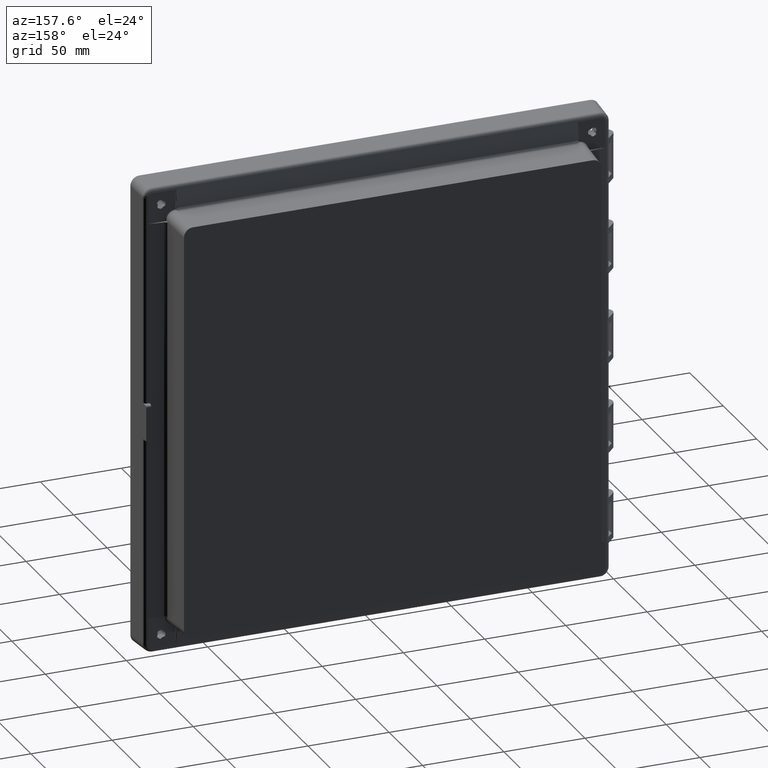
[diagram: clean part render]
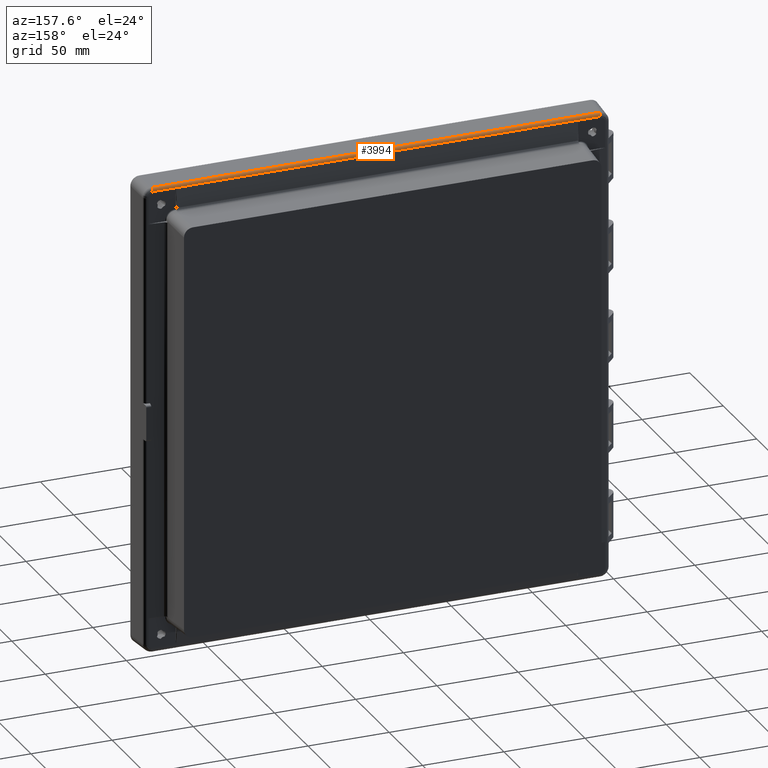
[diagram: same view with one face highlighted and labeled with its STEP entity id]
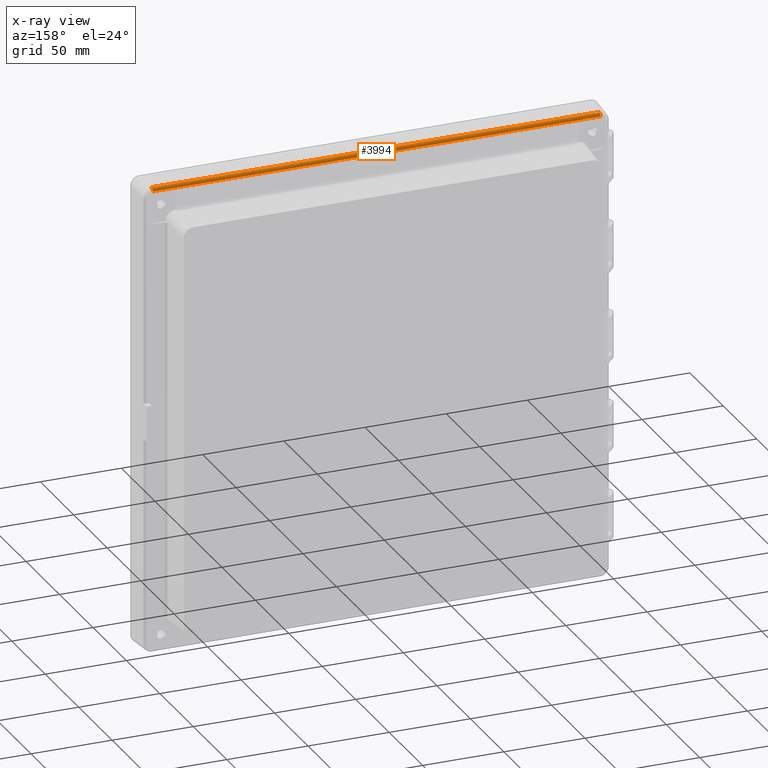
[diagram: x-ray of the same camera — body ghosted, the highlighted face saturated]
A machine part, auxiliary view. The second image highlights one B-rep face of the part: STEP entity #3994.
The next image is the same camera in x-ray: the body ghosted, the highlighted face saturated — about 0% of this face is hidden behind the body in this view.
In plain terms, the highlighted cylindrical surface (edge-blend (fillet) strip) has radius 2 mm, axis along (-1, 0, 0).
Its self-contained STEP definition (entity closure, byte-faithful):
#3889 = EDGE_CURVE ( 'NONE', #12005, #3907, #18259, .T. ) ;
#3907 = VERTEX_POINT ( 'NONE', #18377 ) ;
#3923 = VERTEX_POINT ( 'NONE', #18416 ) ;
#3994 = ADVANCED_FACE ( 'NONE', ( #18849 ), #18848, .T. ) ;
#3995 = EDGE_LOOP ( 'NONE', ( #3996, #3997, #3998, #3999 ) ) ;
#3996 = ORIENTED_EDGE ( 'NONE', *, *, #4008, .T. ) ;
#3997 = ORIENTED_EDGE ( 'NONE', *, *, #11999, .F. ) ;
#3998 = ORIENTED_EDGE ( 'NONE', *, *, #3889, .T. ) ;
#3999 = ORIENTED_EDGE ( 'NONE', *, *, #4000, .F. ) ;
#4000 = EDGE_CURVE ( 'NONE', #3923, #3907, #18947, .T. ) ;
#4008 = EDGE_CURVE ( 'NONE', #3923, #12002, #19214, .T. ) ;
#11999 = EDGE_CURVE ( 'NONE', #12005, #12002, #28944, .T. ) ;
#12002 = VERTEX_POINT ( 'NONE', #28938 ) ;
#12005 = VERTEX_POINT ( 'NONE', #28982 ) ;
#18256 = DIRECTION ( 'NONE',  ( 1.000000000000000000, 0.0000000000000000000, -1.006193478905378600E-016 ) ) ;
#18257 = VECTOR ( 'NONE', #18256, 1000.000000000000000 ) ;
#18258 = CARTESIAN_POINT ( 'NONE',  ( -4.163336342344337000E-014, 8.279051483778998100, 144.5661132971651700 ) ) ;
#18259 = LINE ( 'NONE', #18258, #18257 ) ;
#18377 = CARTESIAN_POINT ( 'NONE',  ( 137.9236508560150300, 8.279053702265596100, 144.5661131808978200 ) ) ;
#18416 = CARTESIAN_POINT ( 'NONE',  ( 137.9236508560150300, 10.16517196802750100, 142.7605457326960200 ) ) ;
#18847 = CARTESIAN_POINT ( 'NONE',  ( 143.8499999999999900, 8.174379571293100000, 142.5688542276560000 ) ) ;
#18848 = CYLINDRICAL_SURFACE ( 'NONE', #18850, 2.000000000000001800 ) ;
#18849 = FACE_OUTER_BOUND ( 'NONE', #3995, .T. ) ;
#18850 = AXIS2_PLACEMENT_3D ( 'NONE', #18847, #18950, #18949 ) ;
#18942 = CARTESIAN_POINT ( 'NONE',  ( 137.9236508560150300, 8.279053702265596100, 144.5661131808978200 ) ) ;
#18943 = CARTESIAN_POINT ( 'NONE',  ( 137.9236508561414500, 9.315761595787188700, 144.5117816224334000 ) ) ;
#18944 = CARTESIAN_POINT ( 'NONE',  ( 137.9236508561226900, 10.06567134505126000, 143.7938992120255600 ) ) ;
#18945 = CARTESIAN_POINT ( 'NONE',  ( 137.9236508560150300, 10.16517196802750100, 142.7605457326960200 ) ) ;
#18947 =( BOUNDED_CURVE ( )  B_SPLINE_CURVE ( 3, ( #18945, #18944, #18943, #18942 ),
 .UNSPECIFIED., .F., .T. ) 
 B_SPLINE_CURVE_WITH_KNOTS ( ( 4, 4 ),
 ( 0.0000000000000000000, 1.000000000000000000 ),
 .UNSPECIFIED. ) 
 CURVE ( )  GEOMETRIC_REPRESENTATION_ITEM ( )  RATIONAL_B_SPLINE_CURVE ( ( 1.000000000000000000, 0.8383766562563020900, 0.8383766562563020900, 1.000000000000000000 ) ) 
 REPRESENTATION_ITEM ( '' )  );
#18949 = DIRECTION ( 'NONE',  ( 0.0000000000000000000, 0.0000000000000000000, 1.000000000000000000 ) ) ;
#18950 = DIRECTION ( 'NONE',  ( -1.000000000000000000, 5.077607773573260200E-020, 1.176057101911899900E-016 ) ) ;
#19210 = CARTESIAN_POINT ( 'NONE',  ( 0.0000000000000000000, 10.16517196802754300, 142.7605457326959900 ) ) ;
#19211 = DIRECTION ( 'NONE',  ( -1.000000000000000000, 6.288709243158618400E-018, 0.0000000000000000000 ) ) ;
#19212 = VECTOR ( 'NONE', #19211, 1000.000000000000000 ) ;
#19214 = LINE ( 'NONE', #19210, #19212 ) ;
#28938 = CARTESIAN_POINT ( 'NONE',  ( -137.9236508560150900, 10.16517196802750400, 142.7605457326959900 ) ) ;
#28940 = CARTESIAN_POINT ( 'NONE',  ( -137.9236508560150900, 10.16517196802750400, 142.7605457326959900 ) ) ;
#28941 = CARTESIAN_POINT ( 'NONE',  ( -137.9236508561281800, 10.06567134505126400, 143.7938992120250000 ) ) ;
#28942 = CARTESIAN_POINT ( 'NONE',  ( -137.9236508561479000, 9.315761595787245500, 144.5117816224327800 ) ) ;
#28943 = CARTESIAN_POINT ( 'NONE',  ( -137.9236508560150900, 8.279051483778998100, 144.5661132971651700 ) ) ;
#28944 =( BOUNDED_CURVE ( )  B_SPLINE_CURVE ( 3, ( #28943, #28942, #28941, #28940 ),
 .UNSPECIFIED., .F., .T. ) 
 B_SPLINE_CURVE_WITH_KNOTS ( ( 4, 4 ),
 ( 0.0000000000000000000, 1.000000000000000000 ),
 .UNSPECIFIED. ) 
 CURVE ( )  GEOMETRIC_REPRESENTATION_ITEM ( )  RATIONAL_B_SPLINE_CURVE ( ( 1.000000000000000000, 0.8383766562563180800, 0.8383766562563180800, 1.000000000000000000 ) ) 
 REPRESENTATION_ITEM ( '' )  );
#28982 = CARTESIAN_POINT ( 'NONE',  ( -137.9236508560150900, 8.279051483778998100, 144.5661132971651700 ) ) ;